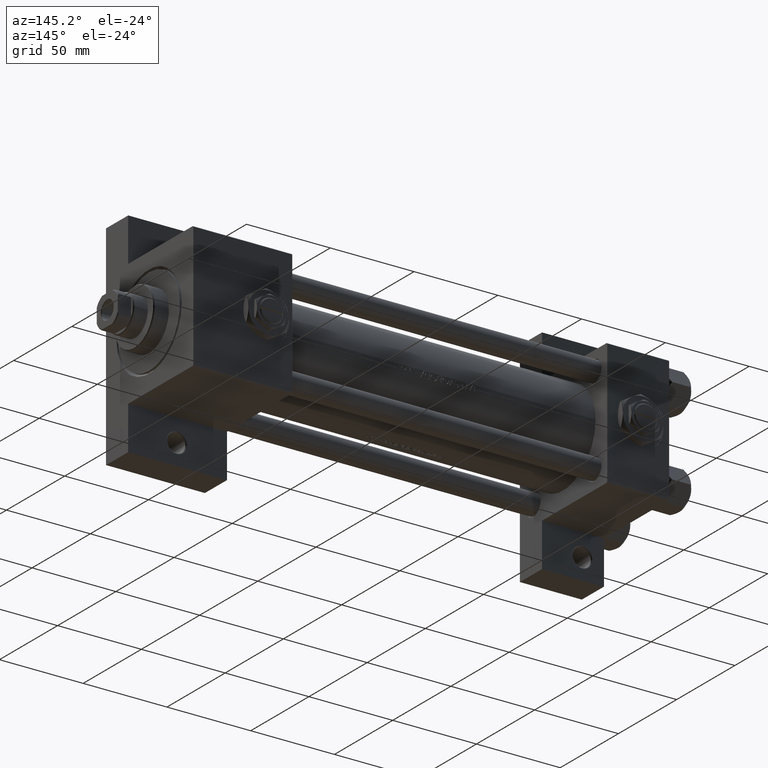
[diagram: clean part render]
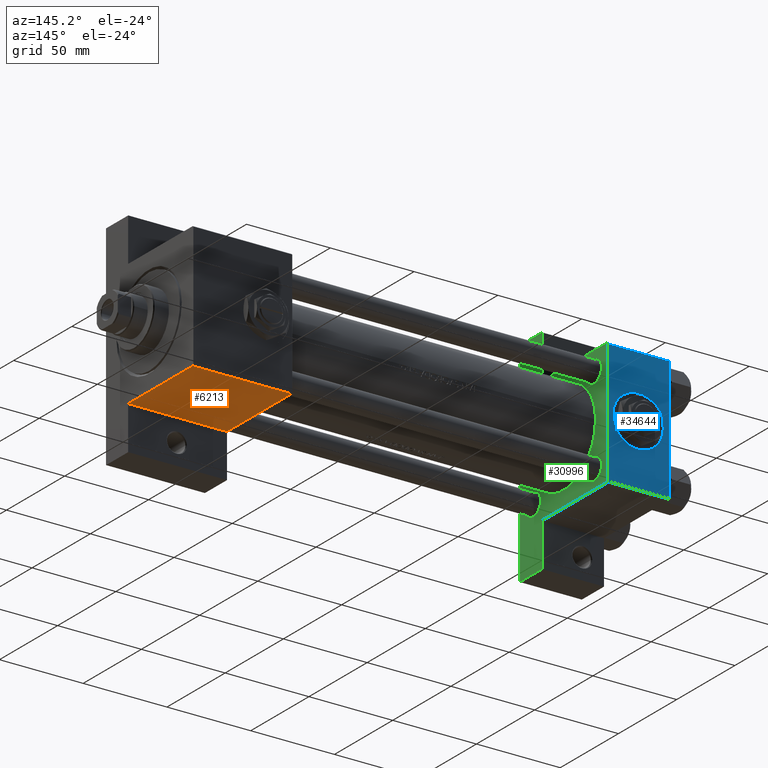
[diagram: same view with three faces highlighted in distinct colors, each labeled with its STEP entity id]
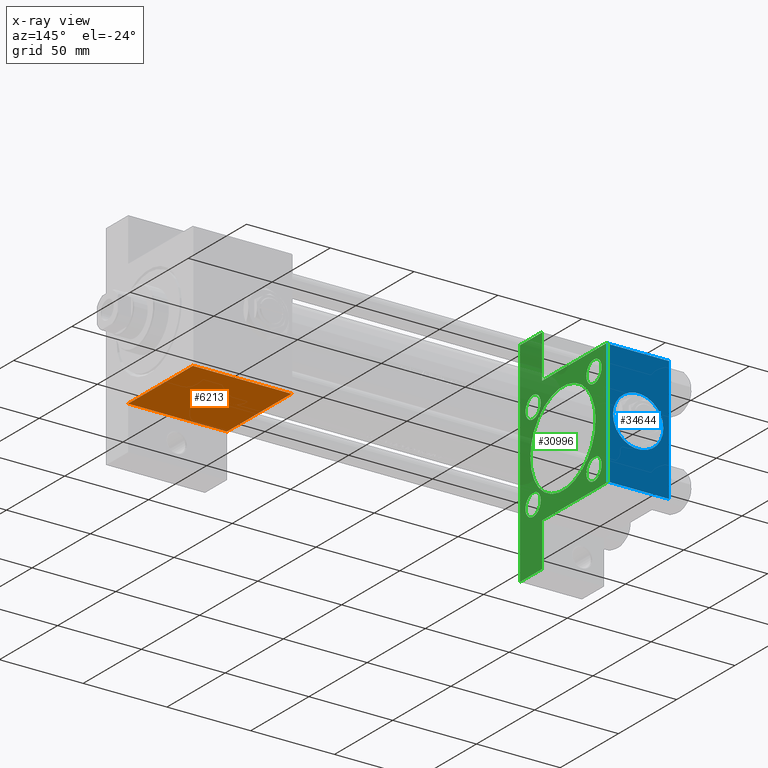
[diagram: x-ray of the same camera — body ghosted, the three highlighted faces saturated]
A machine part, auxiliary view with three faces highlighted in distinct colors.
The next image is the same camera in x-ray (body ghosted, the three faces saturated) — at least one of them is partly hidden behind the body in this view.
Their STEP definitions:

[orange] entity #6213 — the highlighted planar face has unit normal (0, 0, -1).
#1340 = CARTESIAN_POINT ( 'NONE',  ( 225.0000000000000284, 37.50000000000000000, -18.50000000000000000 ) ) ;
#1376 = VECTOR ( 'NONE', #14541, 1000.000000000000000 ) ;
#1492 = PLANE ( 'NONE',  #21553 ) ;
#2019 = ORIENTED_EDGE ( 'NONE', *, *, #45167, .T. ) ;
#2284 = VERTEX_POINT ( 'NONE', #13548 ) ;
#2971 = CARTESIAN_POINT ( 'NONE',  ( 225.0000000000000000, 37.50000000000000000, 36.99999999999993605 ) ) ;
#4487 = FACE_OUTER_BOUND ( 'NONE', #16055, .T. ) ;
#6002 = CARTESIAN_POINT ( 'NONE',  ( 284.0000000000000568, 37.50000000000000000, 37.49999999999999289 ) ) ;
#6213 = ADVANCED_FACE ( 'NONE', ( #4487 ), #1492, .T. ) ;
#8209 = DIRECTION ( 'NONE',  ( -0.000000000000000000, 1.000000000000000000, 0.000000000000000000 ) ) ;
#8943 = CARTESIAN_POINT ( 'NONE',  ( 284.0000000000000568, 37.50000000000000000, 37.49999999999999289 ) ) ;
#13254 = CARTESIAN_POINT ( 'NONE',  ( 284.0000000000000568, 37.50000000000000000, 36.99999999999993605 ) ) ;
#13548 = CARTESIAN_POINT ( 'NONE',  ( 284.0000000000000568, 37.49999999999995026, -18.50000000000000000 ) ) ;
#14541 = DIRECTION ( 'NONE',  ( 0.000000000000000000, 0.000000000000000000, -1.000000000000000000 ) ) ;
#15235 = VERTEX_POINT ( 'NONE', #2971 ) ;
#15534 = VECTOR ( 'NONE', #42256, 1000.000000000000000 ) ;
#16055 = EDGE_LOOP ( 'NONE', ( #43486, #42375, #2019, #48148 ) ) ;
#16888 = LINE ( 'NONE', #44181, #41783 ) ;
#17106 = EDGE_CURVE ( 'NONE', #2284, #22379, #38556, .T. ) ;
#21553 = AXIS2_PLACEMENT_3D ( 'NONE', #8943, #8209, #23808 ) ;
#22379 = VERTEX_POINT ( 'NONE', #38587 ) ;
#23808 = DIRECTION ( 'NONE',  ( 0.000000000000000000, -0.000000000000000000, 1.000000000000000000 ) ) ;
#28792 = DIRECTION ( 'NONE',  ( 1.000000000000000000, 0.000000000000000000, 0.000000000000000000 ) ) ;
#33152 = CARTESIAN_POINT ( 'NONE',  ( 225.0000000000000000, 37.50000000000000000, 37.49999999999999289 ) ) ;
#37237 = DIRECTION ( 'NONE',  ( 0.000000000000000000, 0.000000000000000000, -1.000000000000000000 ) ) ;
#38556 = LINE ( 'NONE', #1340, #15534 ) ;
#38587 = CARTESIAN_POINT ( 'NONE',  ( 225.0000000000000000, 37.50000000000000000, -18.50000000000000355 ) ) ;
#40206 = VERTEX_POINT ( 'NONE', #13254 ) ;
#40460 = LINE ( 'NONE', #6002, #44947 ) ;
#40790 = EDGE_CURVE ( 'NONE', #15235, #22379, #48523, .T. ) ;
#41783 = VECTOR ( 'NONE', #28792, 1000.000000000000000 ) ;
#42256 = DIRECTION ( 'NONE',  ( -1.000000000000000000, 8.232585987686542394E-16, -0.000000000000000000 ) ) ;
#42375 = ORIENTED_EDGE ( 'NONE', *, *, #46098, .T. ) ;
#43486 = ORIENTED_EDGE ( 'NONE', *, *, #40790, .F. ) ;
#44181 = CARTESIAN_POINT ( 'NONE',  ( 284.0000000000000568, 37.50000000000000000, 36.99999999999993605 ) ) ;
#44947 = VECTOR ( 'NONE', #37237, 1000.000000000000000 ) ;
#45167 = EDGE_CURVE ( 'NONE', #40206, #2284, #40460, .T. ) ;
#46098 = EDGE_CURVE ( 'NONE', #15235, #40206, #16888, .T. ) ;
#48148 = ORIENTED_EDGE ( 'NONE', *, *, #17106, .T. ) ;
#48523 = LINE ( 'NONE', #33152, #1376 ) ;

[blue] entity #34644 — the highlighted planar face has unit normal (0, -1, -0).
#1104 = VERTEX_POINT ( 'NONE', #28714 ) ;
#1528 = EDGE_CURVE ( 'NONE', #37502, #36661, #44054, .T. ) ;
#2391 = VECTOR ( 'NONE', #36861, 1000.000000000000000 ) ;
#2551 = EDGE_CURVE ( 'NONE', #36661, #27992, #38100, .T. ) ;
#3073 = VERTEX_POINT ( 'NONE', #23333 ) ;
#3206 = DIRECTION ( 'NONE',  ( 1.000000000000000000, 0.000000000000000000, 0.000000000000000000 ) ) ;
#5137 = AXIS2_PLACEMENT_3D ( 'NONE', #19279, #22264, #7888 ) ;
#5912 = ORIENTED_EDGE ( 'NONE', *, *, #36706, .F. ) ;
#6051 = LINE ( 'NONE', #32101, #14085 ) ;
#6440 = AXIS2_PLACEMENT_3D ( 'NONE', #44396, #36227, #25535 ) ;
#7150 = FACE_OUTER_BOUND ( 'NONE', #41799, .T. ) ;
#7888 = DIRECTION ( 'NONE',  ( 0.000000000000000000, 1.000000000000000000, 9.251858538542971581E-17 ) ) ;
#9329 = ORIENTED_EDGE ( 'NONE', *, *, #45864, .T. ) ;
#10770 = CARTESIAN_POINT ( 'NONE',  ( 33.50000000000000000, -5.204170427930421283E-15, 37.50000000000000000 ) ) ;
#13999 = EDGE_CURVE ( 'NONE', #40468, #3073, #41502, .T. ) ;
#14085 = VECTOR ( 'NONE', #17924, 1000.000000000000000 ) ;
#14812 = PLANE ( 'NONE',  #5137 ) ;
#16011 = LINE ( 'NONE', #45802, #31349 ) ;
#17924 = DIRECTION ( 'NONE',  ( -1.000000000000000000, 0.000000000000000000, 0.000000000000000000 ) ) ;
#18084 = CARTESIAN_POINT ( 'NONE',  ( 0.000000000000000000, 36.99999999999999289, 37.50000000000000000 ) ) ;
#19279 = CARTESIAN_POINT ( 'NONE',  ( 37.00000000000000000, 37.49999999999999289, 37.50000000000000000 ) ) ;
#20246 = CARTESIAN_POINT ( 'NONE',  ( 0.000000000000000000, -37.00000000000000711, 37.49999999999999289 ) ) ;
#22264 = DIRECTION ( 'NONE',  ( 0.000000000000000000, 9.251858538542971581E-17, -1.000000000000000000 ) ) ;
#23105 = EDGE_CURVE ( 'NONE', #3073, #40468, #42864, .T. ) ;
#23333 = CARTESIAN_POINT ( 'NONE',  ( 3.499999999999997780, -3.367200229209391300E-15, 37.50000000000000000 ) ) ;
#25025 = ORIENTED_EDGE ( 'NONE', *, *, #1528, .T. ) ;
#25535 = DIRECTION ( 'NONE',  ( 1.000000000000000000, 0.000000000000000000, 0.000000000000000000 ) ) ;
#26250 = DIRECTION ( 'NONE',  ( 0.000000000000000000, 0.000000000000000000, 1.000000000000000000 ) ) ;
#26724 = FACE_BOUND ( 'NONE', #29693, .T. ) ;
#27992 = VERTEX_POINT ( 'NONE', #31743 ) ;
#28714 = CARTESIAN_POINT ( 'NONE',  ( 37.00000000000000000, 36.99999999999999289, 37.50000000000000000 ) ) ;
#28804 = AXIS2_PLACEMENT_3D ( 'NONE', #29971, #26250, #3206 ) ;
#29693 = EDGE_LOOP ( 'NONE', ( #34254, #47748 ) ) ;
#29971 = CARTESIAN_POINT ( 'NONE',  ( 18.50000000000000000, -5.204170427930421283E-15, 37.50000000000000000 ) ) ;
#31128 = DIRECTION ( 'NONE',  ( 1.000000000000000000, 0.000000000000000000, 0.000000000000000000 ) ) ;
#31349 = VECTOR ( 'NONE', #35379, 1000.000000000000000 ) ;
#31695 = VECTOR ( 'NONE', #31128, 1000.000000000000000 ) ;
#31743 = CARTESIAN_POINT ( 'NONE',  ( 37.00000000000000000, -37.00000000000000711, 37.49999999999999289 ) ) ;
#32101 = CARTESIAN_POINT ( 'NONE',  ( 0.000000000000000000, 36.99999999999999289, 37.50000000000000000 ) ) ;
#32882 = CARTESIAN_POINT ( 'NONE',  ( 0.000000000000000000, 37.49999999999999289, 37.50000000000000000 ) ) ;
#34254 = ORIENTED_EDGE ( 'NONE', *, *, #13999, .F. ) ;
#34644 = ADVANCED_FACE ( 'NONE', ( #26724, #7150 ), #14812, .F. ) ;
#35379 = DIRECTION ( 'NONE',  ( 0.000000000000000000, -1.000000000000000000, -9.251858538542971581E-17 ) ) ;
#36227 = DIRECTION ( 'NONE',  ( 0.000000000000000000, 0.000000000000000000, 1.000000000000000000 ) ) ;
#36661 = VERTEX_POINT ( 'NONE', #20246 ) ;
#36706 = EDGE_CURVE ( 'NONE', #1104, #27992, #16011, .T. ) ;
#36861 = DIRECTION ( 'NONE',  ( 0.000000000000000000, -1.000000000000000000, -9.251858538542971581E-17 ) ) ;
#37502 = VERTEX_POINT ( 'NONE', #18084 ) ;
#37861 = CARTESIAN_POINT ( 'NONE',  ( 37.00000000000000000, -37.00000000000000711, 37.49999999999999289 ) ) ;
#38100 = LINE ( 'NONE', #37861, #31695 ) ;
#40468 = VERTEX_POINT ( 'NONE', #10770 ) ;
#41502 = CIRCLE ( 'NONE', #28804, 15.00000000000000355 ) ;
#41799 = EDGE_LOOP ( 'NONE', ( #25025, #46519, #5912, #9329 ) ) ;
#42864 = CIRCLE ( 'NONE', #6440, 15.00000000000000355 ) ;
#44054 = LINE ( 'NONE', #32882, #2391 ) ;
#44396 = CARTESIAN_POINT ( 'NONE',  ( 18.50000000000000000, -5.204170427930421283E-15, 37.50000000000000000 ) ) ;
#45802 = CARTESIAN_POINT ( 'NONE',  ( 37.00000000000000000, 37.49999999999999289, 37.50000000000000000 ) ) ;
#45864 = EDGE_CURVE ( 'NONE', #1104, #37502, #6051, .T. ) ;
#46519 = ORIENTED_EDGE ( 'NONE', *, *, #2551, .T. ) ;
#47748 = ORIENTED_EDGE ( 'NONE', *, *, #23105, .F. ) ;

[green] entity #30996 — the highlighted planar face has unit normal (-1, 0, -0).
#193 = EDGE_CURVE ( 'NONE', #43115, #16869, #22115, .T. ) ;
#276 = EDGE_LOOP ( 'NONE', ( #44060, #47427 ) ) ;
#391 = VERTEX_POINT ( 'NONE', #47130 ) ;
#630 = VECTOR ( 'NONE', #2947, 1000.000000000000000 ) ;
#869 = CARTESIAN_POINT ( 'NONE',  ( 37.00000000000000000, 26.14999999999999858, 32.64999999999995595 ) ) ;
#1104 = VERTEX_POINT ( 'NONE', #28714 ) ;
#1196 = VERTEX_POINT ( 'NONE', #32695 ) ;
#1355 = ORIENTED_EDGE ( 'NONE', *, *, #36163, .T. ) ;
#1427 = CARTESIAN_POINT ( 'NONE',  ( 37.00000000000000711, 37.50000000000000711, -18.50000000000000355 ) ) ;
#2159 = DIRECTION ( 'NONE',  ( 0.000000000000000000, 0.000000000000000000, 1.000000000000000000 ) ) ;
#2380 = EDGE_LOOP ( 'NONE', ( #3987, #25642 ) ) ;
#2488 = CIRCLE ( 'NONE', #9636, 6.499999999999953815 ) ;
#2736 = FACE_BOUND ( 'NONE', #276, .T. ) ;
#2947 = DIRECTION ( 'NONE',  ( 0.000000000000000000, -1.734723475976806848E-16, -1.000000000000000000 ) ) ;
#2973 = DIRECTION ( 'NONE',  ( -1.000000000000000000, 0.000000000000000000, -0.000000000000000000 ) ) ;
#3082 = CARTESIAN_POINT ( 'NONE',  ( 37.00000000000001421, 63.50000000000001421, 26.72167621838005047 ) ) ;
#3203 = EDGE_CURVE ( 'NONE', #4097, #21860, #42512, .T. ) ;
#3343 = DIRECTION ( 'NONE',  ( 0.000000000000000000, 0.000000000000000000, 1.000000000000000000 ) ) ;
#3451 = VECTOR ( 'NONE', #47964, 1000.000000000000000 ) ;
#3618 = CIRCLE ( 'NONE', #30497, 6.499999999999946709 ) ;
#3697 = EDGE_CURVE ( 'NONE', #1196, #4097, #46358, .T. ) ;
#3987 = ORIENTED_EDGE ( 'NONE', *, *, #15951, .T. ) ;
#4097 = VERTEX_POINT ( 'NONE', #1427 ) ;
#4166 = LINE ( 'NONE', #42091, #39651 ) ;
#4489 = VERTEX_POINT ( 'NONE', #48371 ) ;
#5358 = EDGE_CURVE ( 'NONE', #21860, #47108, #44747, .T. ) ;
#5536 = DIRECTION ( 'NONE',  ( 1.000000000000000000, -0.000000000000000000, 0.000000000000000000 ) ) ;
#5605 = VECTOR ( 'NONE', #7391, 1000.000000000000000 ) ;
#5673 = ORIENTED_EDGE ( 'NONE', *, *, #34956, .T. ) ;
#5734 = CARTESIAN_POINT ( 'NONE',  ( 37.00000000000000000, -37.50000000000000000, -18.50000000000000355 ) ) ;
#5903 = LINE ( 'NONE', #38909, #11399 ) ;
#6012 = CARTESIAN_POINT ( 'NONE',  ( 37.00000000000000000, -26.14999999999999147, -26.15000000000000924 ) ) ;
#6109 = DIRECTION ( 'NONE',  ( -1.000000000000000000, 0.000000000000000000, -0.000000000000000000 ) ) ;
#6263 = CARTESIAN_POINT ( 'NONE',  ( 37.00000000000000000, -26.14999999999999147, 19.65000000000005542 ) ) ;
#6460 = LINE ( 'NONE', #28771, #7615 ) ;
#6907 = CARTESIAN_POINT ( 'NONE',  ( 37.00000000000000000, -63.49999999999998579, 26.72167621838007889 ) ) ;
#7122 = CIRCLE ( 'NONE', #32428, 6.499999999999953815 ) ;
#7391 = DIRECTION ( 'NONE',  ( 2.668805347656626678E-16, 1.000000000000000000, 0.000000000000000000 ) ) ;
#7615 = VECTOR ( 'NONE', #43920, 1000.000000000000000 ) ;
#7980 = VERTEX_POINT ( 'NONE', #6263 ) ;
#8362 = ORIENTED_EDGE ( 'NONE', *, *, #8502, .F. ) ;
#8502 = EDGE_CURVE ( 'NONE', #47108, #35325, #28947, .T. ) ;
#8814 = DIRECTION ( 'NONE',  ( -1.000000000000000000, 0.000000000000000000, -0.000000000000000000 ) ) ;
#9382 = VERTEX_POINT ( 'NONE', #42936 ) ;
#9636 = AXIS2_PLACEMENT_3D ( 'NONE', #30085, #22649, #41011 ) ;
#10167 = DIRECTION ( 'NONE',  ( -0.000000000000000000, 0.000000000000000000, 1.000000000000000000 ) ) ;
#10248 = ORIENTED_EDGE ( 'NONE', *, *, #193, .F. ) ;
#11019 = CARTESIAN_POINT ( 'NONE',  ( 37.00000000000000000, 26.14999999999999858, -26.15000000000000213 ) ) ;
#11399 = VECTOR ( 'NONE', #12831, 1000.000000000000114 ) ;
#11471 = AXIS2_PLACEMENT_3D ( 'NONE', #11019, #37576, #3343 ) ;
#11595 = CIRCLE ( 'NONE', #38554, 6.499999999999946709 ) ;
#11629 = ORIENTED_EDGE ( 'NONE', *, *, #13162, .T. ) ;
#12831 = DIRECTION ( 'NONE',  ( 0.000000000000000000, -0.7071067811865474617, 0.7071067811865474617 ) ) ;
#13162 = EDGE_CURVE ( 'NONE', #9382, #20638, #35829, .T. ) ;
#13199 = DIRECTION ( 'NONE',  ( 0.000000000000000000, 0.000000000000000000, 1.000000000000000000 ) ) ;
#13625 = FACE_BOUND ( 'NONE', #20233, .T. ) ;
#14182 = AXIS2_PLACEMENT_3D ( 'NONE', #25102, #5536, #13199 ) ;
#14269 = EDGE_CURVE ( 'NONE', #1196, #1104, #5903, .T. ) ;
#14358 = ORIENTED_EDGE ( 'NONE', *, *, #14269, .T. ) ;
#14602 = CIRCLE ( 'NONE', #11471, 6.499999999999946709 ) ;
#14898 = ORIENTED_EDGE ( 'NONE', *, *, #22527, .T. ) ;
#15082 = VERTEX_POINT ( 'NONE', #46445 ) ;
#15401 = CIRCLE ( 'NONE', #43138, 6.499999999999953815 ) ;
#15951 = EDGE_CURVE ( 'NONE', #4489, #47401, #14602, .T. ) ;
#16011 = LINE ( 'NONE', #45802, #31349 ) ;
#16400 = DIRECTION ( 'NONE',  ( -1.000000000000000000, 0.000000000000000000, -0.000000000000000000 ) ) ;
#16644 = CARTESIAN_POINT ( 'NONE',  ( 37.00000000000000000, 26.14999999999999858, -26.15000000000000213 ) ) ;
#16817 = CARTESIAN_POINT ( 'NONE',  ( 37.00000000000000000, -26.14999999999999147, -19.65000000000006253 ) ) ;
#16869 = VERTEX_POINT ( 'NONE', #33097 ) ;
#17137 = DIRECTION ( 'NONE',  ( 0.000000000000000000, 0.000000000000000000, 1.000000000000000000 ) ) ;
#17389 = DIRECTION ( 'NONE',  ( -1.000000000000000000, 0.000000000000000000, -0.000000000000000000 ) ) ;
#17446 = DIRECTION ( 'NONE',  ( 0.000000000000000000, -1.734723475976806848E-16, -1.000000000000000000 ) ) ;
#17466 = EDGE_CURVE ( 'NONE', #21614, #15082, #40907, .T. ) ;
#17529 = EDGE_CURVE ( 'NONE', #47401, #4489, #11595, .T. ) ;
#17563 = CIRCLE ( 'NONE', #27876, 6.499999999999946709 ) ;
#17581 = FACE_OUTER_BOUND ( 'NONE', #20536, .T. ) ;
#17696 = CARTESIAN_POINT ( 'NONE',  ( 37.00000000000000000, -37.50000000000000711, 37.49999999999999289 ) ) ;
#18709 = EDGE_CURVE ( 'NONE', #15082, #21614, #7122, .T. ) ;
#19268 = DIRECTION ( 'NONE',  ( -0.000000000000000000, -0.7071067811865474617, -0.7071067811865474617 ) ) ;
#19579 = DIRECTION ( 'NONE',  ( 1.000000000000000000, -0.000000000000000000, 0.000000000000000000 ) ) ;
#19596 = ORIENTED_EDGE ( 'NONE', *, *, #21244, .T. ) ;
#19822 = CARTESIAN_POINT ( 'NONE',  ( 37.00000000000000711, 0.000000000000000000, -0.5000000000000004441 ) ) ;
#20233 = EDGE_LOOP ( 'NONE', ( #24032, #1355 ) ) ;
#20385 = DIRECTION ( 'NONE',  ( 0.000000000000000000, 0.000000000000000000, 1.000000000000000000 ) ) ;
#20536 = EDGE_LOOP ( 'NONE', ( #29722, #19596, #11629, #37704, #38052, #8362, #35200, #26048, #24135, #14358 ) ) ;
#20638 = VERTEX_POINT ( 'NONE', #5734 ) ;
#20846 = VECTOR ( 'NONE', #25469, 1000.000000000000000 ) ;
#21123 = DIRECTION ( 'NONE',  ( 0.000000000000000000, 0.000000000000000000, 1.000000000000000000 ) ) ;
#21244 = EDGE_CURVE ( 'NONE', #27992, #9382, #4166, .T. ) ;
#21310 = FACE_BOUND ( 'NONE', #26324, .T. ) ;
#21614 = VERTEX_POINT ( 'NONE', #869 ) ;
#21801 = FACE_BOUND ( 'NONE', #2380, .T. ) ;
#21860 = VERTEX_POINT ( 'NONE', #27815 ) ;
#21878 = AXIS2_PLACEMENT_3D ( 'NONE', #32289, #16400, #17137 ) ;
#22115 = CIRCLE ( 'NONE', #14182, 28.00000000000000000 ) ;
#22527 = EDGE_CURVE ( 'NONE', #7980, #44177, #2488, .T. ) ;
#22649 = DIRECTION ( 'NONE',  ( -1.000000000000000000, 0.000000000000000000, -0.000000000000000000 ) ) ;
#24032 = ORIENTED_EDGE ( 'NONE', *, *, #25262, .T. ) ;
#24135 = ORIENTED_EDGE ( 'NONE', *, *, #3697, .F. ) ;
#25102 = CARTESIAN_POINT ( 'NONE',  ( 37.00000000000000711, 0.000000000000000000, -0.5000000000000004441 ) ) ;
#25262 = EDGE_CURVE ( 'NONE', #391, #38606, #17563, .T. ) ;
#25469 = DIRECTION ( 'NONE',  ( 0.000000000000000000, -1.000000000000000000, -9.251858538542972814E-17 ) ) ;
#25642 = ORIENTED_EDGE ( 'NONE', *, *, #17529, .T. ) ;
#25853 = CARTESIAN_POINT ( 'NONE',  ( 37.00000000000000711, 3.429011037612589276E-15, -28.50000000000000000 ) ) ;
#26048 = ORIENTED_EDGE ( 'NONE', *, *, #3203, .F. ) ;
#26324 = EDGE_LOOP ( 'NONE', ( #32405, #10248 ) ) ;
#27269 = DIRECTION ( 'NONE',  ( 0.000000000000000000, 0.000000000000000000, -1.000000000000000000 ) ) ;
#27815 = CARTESIAN_POINT ( 'NONE',  ( 37.00000000000001421, 63.50000000000000000, -18.50000000000000355 ) ) ;
#27876 = AXIS2_PLACEMENT_3D ( 'NONE', #29151, #6109, #2159 ) ;
#27992 = VERTEX_POINT ( 'NONE', #31743 ) ;
#28281 = CIRCLE ( 'NONE', #46527, 28.00000000000000000 ) ;
#28714 = CARTESIAN_POINT ( 'NONE',  ( 37.00000000000000000, 36.99999999999999289, 37.50000000000000000 ) ) ;
#28754 = CARTESIAN_POINT ( 'NONE',  ( 37.00000000000000000, 0.000000000000000000, 0.000000000000000000 ) ) ;
#28771 = CARTESIAN_POINT ( 'NONE',  ( 37.00000000000000000, -63.49999999999998579, -18.50000000000000355 ) ) ;
#28947 = LINE ( 'NONE', #36649, #20846 ) ;
#28997 = PLANE ( 'NONE',  #41455 ) ;
#29037 = CARTESIAN_POINT ( 'NONE',  ( 37.00000000000000000, -26.14999999999999147, 32.64999999999996305 ) ) ;
#29151 = CARTESIAN_POINT ( 'NONE',  ( 37.00000000000000000, -26.14999999999999147, -26.15000000000000924 ) ) ;
#29378 = CARTESIAN_POINT ( 'NONE',  ( 37.00000000000000000, -63.50000000000000000, -18.50000000000000355 ) ) ;
#29482 = FACE_BOUND ( 'NONE', #40659, .T. ) ;
#29722 = ORIENTED_EDGE ( 'NONE', *, *, #36706, .T. ) ;
#30085 = CARTESIAN_POINT ( 'NONE',  ( 37.00000000000000000, -26.14999999999999147, 26.15000000000000924 ) ) ;
#30497 = AXIS2_PLACEMENT_3D ( 'NONE', #6012, #17389, #21123 ) ;
#30996 = ADVANCED_FACE ( 'NONE', ( #13625, #21801, #29482, #2736, #21310, #17581 ), #28997, .F. ) ;
#31349 = VECTOR ( 'NONE', #35379, 1000.000000000000000 ) ;
#31743 = CARTESIAN_POINT ( 'NONE',  ( 37.00000000000000000, -37.00000000000000711, 37.49999999999999289 ) ) ;
#31794 = DIRECTION ( 'NONE',  ( -1.000000000000000000, 0.000000000000000000, -0.000000000000000000 ) ) ;
#31838 = CARTESIAN_POINT ( 'NONE',  ( 37.00000000000001421, 63.50000000000001421, -18.50000000000000355 ) ) ;
#32289 = CARTESIAN_POINT ( 'NONE',  ( 37.00000000000000000, 26.14999999999999858, 26.15000000000000213 ) ) ;
#32405 = ORIENTED_EDGE ( 'NONE', *, *, #45428, .F. ) ;
#32428 = AXIS2_PLACEMENT_3D ( 'NONE', #41639, #33707, #45839 ) ;
#32695 = CARTESIAN_POINT ( 'NONE',  ( 37.00000000000000000, 37.49999999999999289, 37.00000000000000000 ) ) ;
#33097 = CARTESIAN_POINT ( 'NONE',  ( 37.00000000000000711, 0.000000000000000000, 27.50000000000000000 ) ) ;
#33198 = CARTESIAN_POINT ( 'NONE',  ( 37.00000000000000000, 26.14999999999999858, -19.65000000000005542 ) ) ;
#33263 = CARTESIAN_POINT ( 'NONE',  ( 37.00000000000001421, 63.50000000000000000, -37.50000000000002132 ) ) ;
#33707 = DIRECTION ( 'NONE',  ( -1.000000000000000000, 0.000000000000000000, -0.000000000000000000 ) ) ;
#34361 = LINE ( 'NONE', #6907, #630 ) ;
#34956 = EDGE_CURVE ( 'NONE', #44177, #7980, #15401, .T. ) ;
#35200 = ORIENTED_EDGE ( 'NONE', *, *, #5358, .F. ) ;
#35325 = VERTEX_POINT ( 'NONE', #42107 ) ;
#35379 = DIRECTION ( 'NONE',  ( 0.000000000000000000, -1.000000000000000000, -9.251858538542971581E-17 ) ) ;
#35829 = LINE ( 'NONE', #17696, #3451 ) ;
#36163 = EDGE_CURVE ( 'NONE', #38606, #391, #3618, .T. ) ;
#36649 = CARTESIAN_POINT ( 'NONE',  ( 37.00000000000000000, 37.49999999999999289, -37.50000000000000000 ) ) ;
#36706 = EDGE_CURVE ( 'NONE', #1104, #27992, #16011, .T. ) ;
#37510 = EDGE_CURVE ( 'NONE', #42884, #20638, #6460, .T. ) ;
#37576 = DIRECTION ( 'NONE',  ( -1.000000000000000000, 0.000000000000000000, -0.000000000000000000 ) ) ;
#37704 = ORIENTED_EDGE ( 'NONE', *, *, #37510, .F. ) ;
#38052 = ORIENTED_EDGE ( 'NONE', *, *, #45751, .T. ) ;
#38122 = VECTOR ( 'NONE', #27269, 1000.000000000000000 ) ;
#38554 = AXIS2_PLACEMENT_3D ( 'NONE', #16644, #31794, #20385 ) ;
#38606 = VERTEX_POINT ( 'NONE', #16817 ) ;
#38909 = CARTESIAN_POINT ( 'NONE',  ( 37.00000000000000000, 36.99999999999999289, 37.50000000000000000 ) ) ;
#38939 = CARTESIAN_POINT ( 'NONE',  ( 37.00000000000000000, 37.49999999999999289, 37.50000000000000000 ) ) ;
#39651 = VECTOR ( 'NONE', #19268, 1000.000000000000114 ) ;
#40659 = EDGE_LOOP ( 'NONE', ( #14898, #5673 ) ) ;
#40907 = CIRCLE ( 'NONE', #21878, 6.499999999999953815 ) ;
#41011 = DIRECTION ( 'NONE',  ( 0.000000000000000000, 0.000000000000000000, 1.000000000000000000 ) ) ;
#41455 = AXIS2_PLACEMENT_3D ( 'NONE', #28754, #2973, #10167 ) ;
#41639 = CARTESIAN_POINT ( 'NONE',  ( 37.00000000000000000, 26.14999999999999858, 26.15000000000000213 ) ) ;
#42091 = CARTESIAN_POINT ( 'NONE',  ( 37.00000000000000000, -37.50000000000000711, 36.99999999999999289 ) ) ;
#42094 = VECTOR ( 'NONE', #17446, 1000.000000000000000 ) ;
#42107 = CARTESIAN_POINT ( 'NONE',  ( 37.00000000000000000, -63.50000000000000000, -37.49999999999999289 ) ) ;
#42288 = CARTESIAN_POINT ( 'NONE',  ( 37.00000000000000000, -26.14999999999999147, 26.15000000000000924 ) ) ;
#42398 = DIRECTION ( 'NONE',  ( 0.000000000000000000, 0.000000000000000000, 1.000000000000000000 ) ) ;
#42512 = LINE ( 'NONE', #31838, #5605 ) ;
#42884 = VERTEX_POINT ( 'NONE', #29378 ) ;
#42936 = CARTESIAN_POINT ( 'NONE',  ( 37.00000000000000000, -37.50000000000000711, 36.99999999999999289 ) ) ;
#43115 = VERTEX_POINT ( 'NONE', #25853 ) ;
#43138 = AXIS2_PLACEMENT_3D ( 'NONE', #42288, #8814, #46248 ) ;
#43920 = DIRECTION ( 'NONE',  ( -0.000000000000000000, 1.000000000000000000, 0.000000000000000000 ) ) ;
#44060 = ORIENTED_EDGE ( 'NONE', *, *, #18709, .T. ) ;
#44177 = VERTEX_POINT ( 'NONE', #29037 ) ;
#44747 = LINE ( 'NONE', #3082, #42094 ) ;
#45428 = EDGE_CURVE ( 'NONE', #16869, #43115, #28281, .T. ) ;
#45751 = EDGE_CURVE ( 'NONE', #42884, #35325, #34361, .T. ) ;
#45802 = CARTESIAN_POINT ( 'NONE',  ( 37.00000000000000000, 37.49999999999999289, 37.50000000000000000 ) ) ;
#45839 = DIRECTION ( 'NONE',  ( 0.000000000000000000, 0.000000000000000000, 1.000000000000000000 ) ) ;
#46248 = DIRECTION ( 'NONE',  ( 0.000000000000000000, 0.000000000000000000, 1.000000000000000000 ) ) ;
#46358 = LINE ( 'NONE', #38939, #38122 ) ;
#46445 = CARTESIAN_POINT ( 'NONE',  ( 37.00000000000000000, 26.14999999999999858, 19.65000000000005187 ) ) ;
#46527 = AXIS2_PLACEMENT_3D ( 'NONE', #19822, #19579, #42398 ) ;
#47108 = VERTEX_POINT ( 'NONE', #33263 ) ;
#47130 = CARTESIAN_POINT ( 'NONE',  ( 37.00000000000000000, -26.14999999999999147, -32.64999999999995595 ) ) ;
#47401 = VERTEX_POINT ( 'NONE', #33198 ) ;
#47427 = ORIENTED_EDGE ( 'NONE', *, *, #17466, .T. ) ;
#47964 = DIRECTION ( 'NONE',  ( 0.000000000000000000, 9.251858538542971581E-17, -1.000000000000000000 ) ) ;
#48371 = CARTESIAN_POINT ( 'NONE',  ( 37.00000000000000000, 26.14999999999999858, -32.64999999999994884 ) ) ;